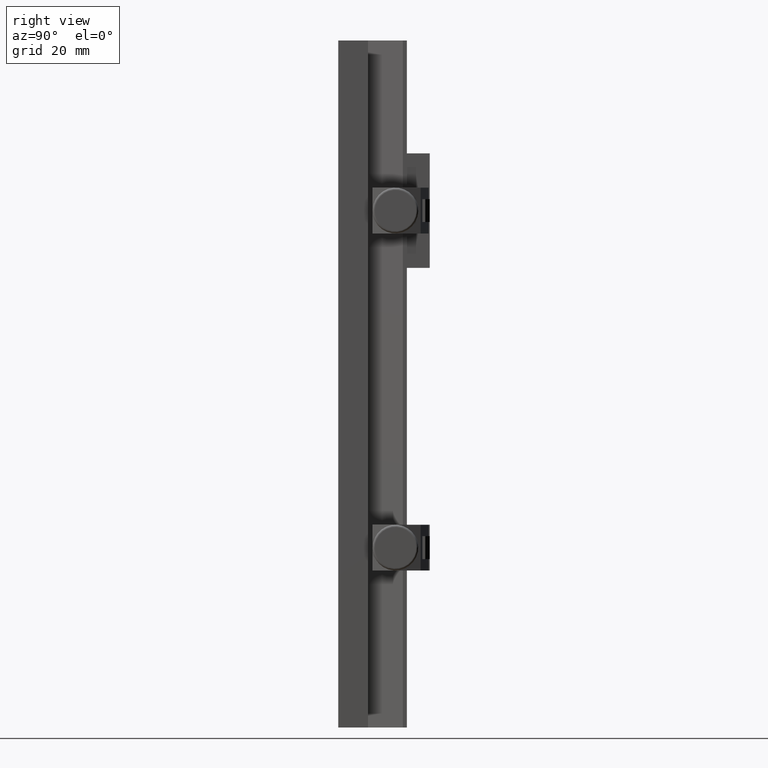
[diagram: clean part render]
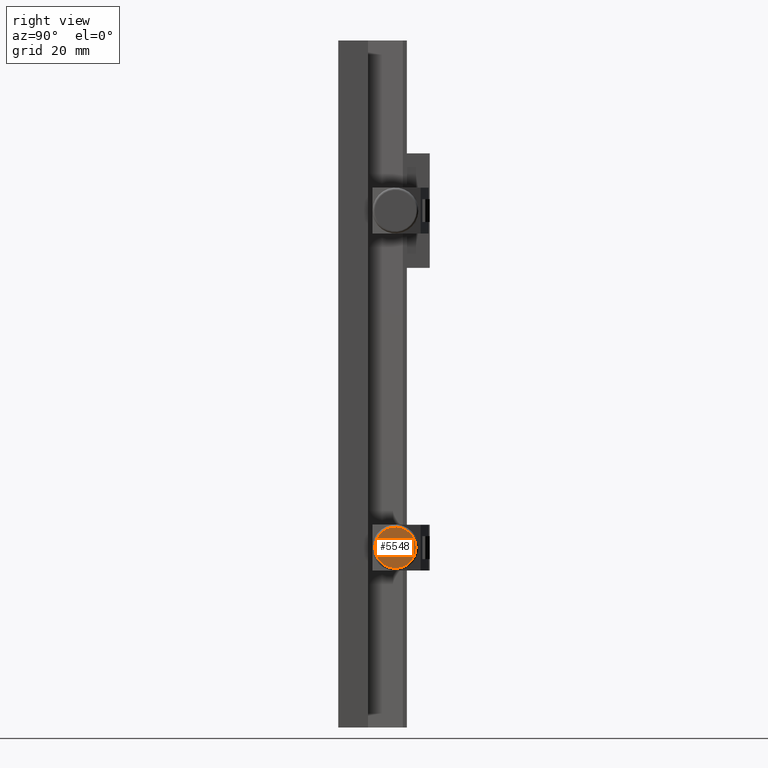
[diagram: same view with one face highlighted and labeled with its STEP entity id]
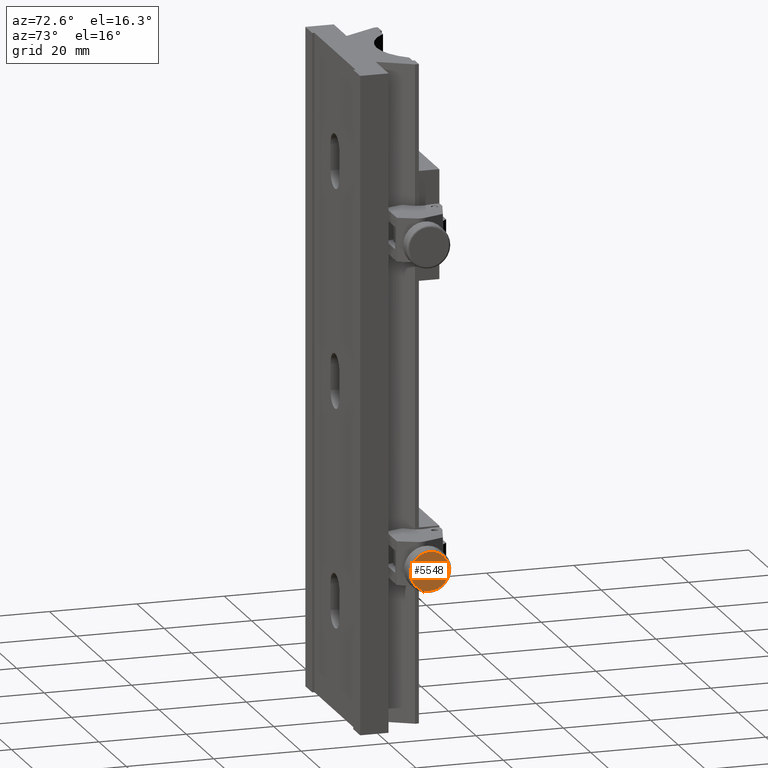
[diagram: same view with one face highlighted and labeled with its STEP entity id]
A machine part, right view. The second image highlights one B-rep face of the part: STEP entity #5548.
A second angle (auxiliary view) of the same face is appended — the face is thin or edge-on in the first view.
In plain terms, the highlighted planar face has unit normal (1, -0, -0).
Its self-contained STEP definition (entity closure, byte-faithful):
#315 = FACE_OUTER_BOUND ( 'NONE', #835, .T. ) ;
#471 = AXIS2_PLACEMENT_3D ( 'NONE', #3921, #3978, #1801 ) ;
#641 = CIRCLE ( 'NONE', #2472, 4.500000000000000000 ) ;
#835 = EDGE_LOOP ( 'NONE', ( #4246, #4759 ) ) ;
#1286 = CARTESIAN_POINT ( 'NONE',  ( 31.02920797411995224, 6.000000000000004441, -35.72750728490126448 ) ) ;
#1718 = CARTESIAN_POINT ( 'NONE',  ( 31.02920797411995224, 7.371811338849794559, -31.44170121712321020 ) ) ;
#1772 = DIRECTION ( 'NONE',  ( 0.000000000000000000, -0.3048469641888419956, -0.9524013483951221382 ) ) ;
#1801 = DIRECTION ( 'NONE',  ( 0.000000000000000000, -0.3048469641888419956, -0.9524013483951221382 ) ) ;
#2037 = DIRECTION ( 'NONE',  ( -9.643473249110020140E-17, -0.3048469641888418846, -0.9524013483951221382 ) ) ;
#2472 = AXIS2_PLACEMENT_3D ( 'NONE', #3592, #5263, #1772 ) ;
#2476 = CIRCLE ( 'NONE', #471, 4.500000000000000000 ) ;
#3378 = PLANE ( 'NONE',  #5538 ) ;
#3590 = EDGE_CURVE ( 'NONE', #4880, #4870, #641, .T. ) ;
#3592 = CARTESIAN_POINT ( 'NONE',  ( 31.02920797411995224, 6.000000000000004441, -35.72750728490126448 ) ) ;
#3921 = CARTESIAN_POINT ( 'NONE',  ( 31.02920797411995224, 6.000000000000004441, -35.72750728490126448 ) ) ;
#3978 = DIRECTION ( 'NONE',  ( 1.000000000000000000, -2.265490642124658839E-16, -2.873991943861819486E-17 ) ) ;
#4246 = ORIENTED_EDGE ( 'NONE', *, *, #3590, .T. ) ;
#4733 = DIRECTION ( 'NONE',  ( 1.000000000000000000, -2.265490642124658346E-16, -2.873991943861802846E-17 ) ) ;
#4759 = ORIENTED_EDGE ( 'NONE', *, *, #4882, .T. ) ;
#4870 = VERTEX_POINT ( 'NONE', #1718 ) ;
#4880 = VERTEX_POINT ( 'NONE', #5320 ) ;
#4882 = EDGE_CURVE ( 'NONE', #4870, #4880, #2476, .T. ) ;
#5263 = DIRECTION ( 'NONE',  ( 1.000000000000000000, -2.265490642124658839E-16, -2.873991943861819486E-17 ) ) ;
#5320 = CARTESIAN_POINT ( 'NONE',  ( 31.02920797411995224, 4.628188661150215211, -40.01331335267931166 ) ) ;
#5538 = AXIS2_PLACEMENT_3D ( 'NONE', #1286, #4733, #2037 ) ;
#5548 = ADVANCED_FACE ( 'NONE', ( #315 ), #3378, .T. ) ;